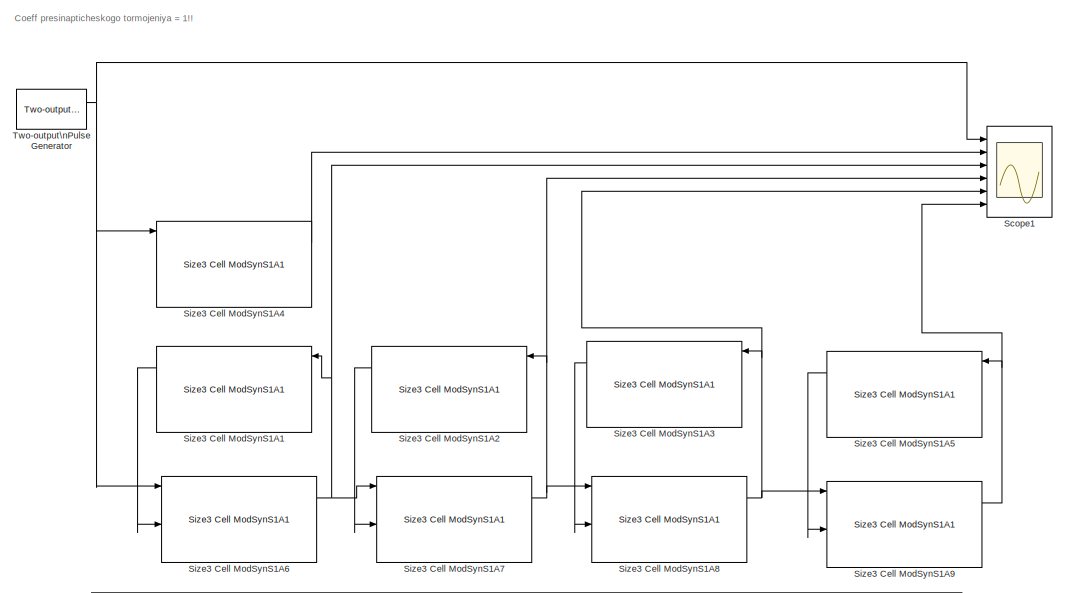
[diagram: root canvas - part 1/2, full width, top band]
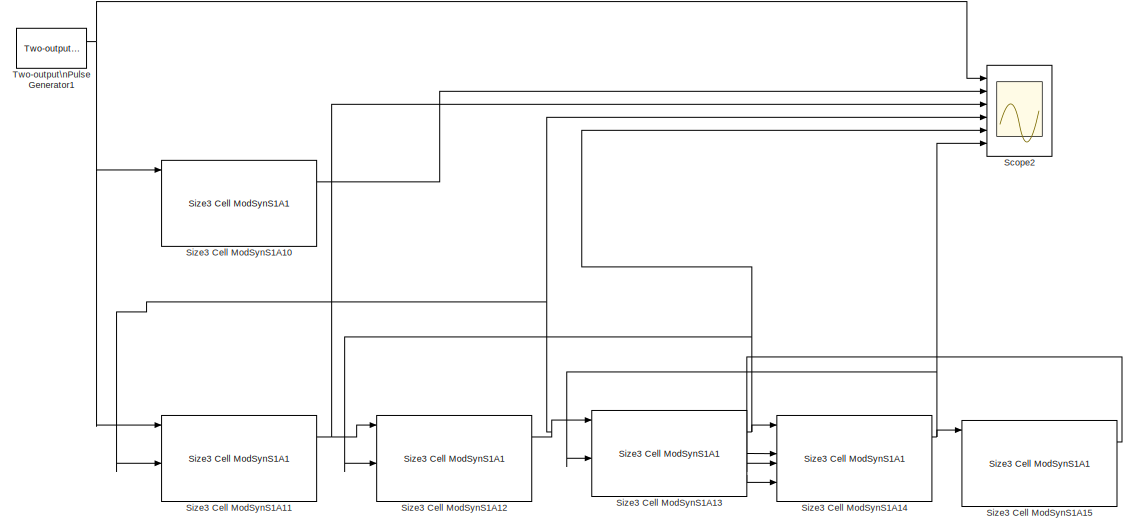
[diagram: root canvas - part 2/2, full width, bottom band]
MODEL ReflexiveInhibition
KIND model
BLOCK [Scope] Scope1
  Floating = off
  NumInputPorts = 6
  Ports = [6]
  SID = 1
  ScopeSpecificationString = Simulink.scopes.TimeScopeBlockCfg('CurrentConfiguration', extmgr.ConfigurationSet(extmgr.Configuration('Core','General UI',true),extmgr.Configuration('Core','Source UI',true),extmgr.Configuration('Sources','WiredSimulink',true,'DataLoggingSaveFormat','StructureWithTime','DataLoggingMaxPoints','5000000','DataLoggingLimitDataPoints',true,'DataLoggingDecimation','1','DataLoggingDecimateData',true),ex...<+5275ch>
BLOCK [Scope] Scope2
  Floating = off
  NumInputPorts = 6
  Ports = [6]
  SID = 2
  ScopeSpecificationString = Simulink.scopes.TimeScopeBlockCfg('CurrentConfiguration', extmgr.ConfigurationSet(extmgr.Configuration('Core','General UI',true),extmgr.Configuration('Core','Source UI',true),extmgr.Configuration('Sources','WiredSimulink',true,'DataLoggingVariableName','ScopeData1','DataLoggingSaveFormat','StructureWithTime','DataLoggingMaxPoints','5000000','DataLoggingLimitDataPoints',true,'DataLoggingDecimation'...<+5335ch>
BLOCK [Reference] Size3 Cell ModSynS1A1  REF=NeuroModelerLibrary/Sized Cells/Size3 Cell ModSynS1A1
  AllowZeroVariantControls = off
  AutoFrameSizeCalculation = off
  Latency = 0
  Ports = [8, 3]
  PropagateVariantConditions = off
  RTWMemSecDataConstants = Inherit from model
  RTWMemSecDataInternal = Inherit from model
  RTWMemSecDataParameters = Inherit from model
  RTWMemSecFuncExecute = Inherit from model
  RTWMemSecFuncInitTerm = Inherit from model
  SID = 25
  ShowPortLabels = FromPortIcon
  SourceBlock = NeuroModelerLibrary/Sized Cells/Size3 Cell ModSynS1A1
  SourceType = SubSystem
  SystemSampleTime = -1
  VariantActivationTime = update diagram
BLOCK [Reference] Size3 Cell ModSynS1A10  REF=NeuroModelerLibrary/Sized Cells/Size3 Cell ModSynS1A1
  AllowZeroVariantControls = off
  AutoFrameSizeCalculation = off
  Latency = 0
  NameLocation = top
  Ports = [8, 3]
  PropagateVariantConditions = off
  RTWMemSecDataConstants = Inherit from model
  RTWMemSecDataInternal = Inherit from model
  RTWMemSecDataParameters = Inherit from model
  RTWMemSecFuncExecute = Inherit from model
  RTWMemSecFuncInitTerm = Inherit from model
  SID = 34
  ShowPortLabels = FromPortIcon
  SourceBlock = NeuroModelerLibrary/Sized Cells/Size3 Cell ModSynS1A1
  SourceType = SubSystem
  SystemSampleTime = -1
  VariantActivationTime = update diagram
BLOCK [Reference] Size3 Cell ModSynS1A11  REF=NeuroModelerLibrary/Sized Cells/Size3 Cell ModSynS1A1
  AllowZeroVariantControls = off
  AutoFrameSizeCalculation = off
  Latency = 0
  NameLocation = top
  Ports = [8, 3]
  PropagateVariantConditions = off
  RTWMemSecDataConstants = Inherit from model
  RTWMemSecDataInternal = Inherit from model
  RTWMemSecDataParameters = Inherit from model
  RTWMemSecFuncExecute = Inherit from model
  RTWMemSecFuncInitTerm = Inherit from model
  SID = 35
  ShowPortLabels = FromPortIcon
  SourceBlock = NeuroModelerLibrary/Sized Cells/Size3 Cell ModSynS1A1
  SourceType = SubSystem
  SystemSampleTime = -1
  VariantActivationTime = update diagram
BLOCK [Reference] Size3 Cell ModSynS1A12  REF=NeuroModelerLibrary/Sized Cells/Size3 Cell ModSynS1A1
  AllowZeroVariantControls = off
  AutoFrameSizeCalculation = off
  Latency = 0
  NameLocation = top
  Ports = [8, 3]
  PropagateVariantConditions = off
  RTWMemSecDataConstants = Inherit from model
  RTWMemSecDataInternal = Inherit from model
  RTWMemSecDataParameters = Inherit from model
  RTWMemSecFuncExecute = Inherit from model
  RTWMemSecFuncInitTerm = Inherit from model
  SID = 36
  ShowPortLabels = FromPortIcon
  SourceBlock = NeuroModelerLibrary/Sized Cells/Size3 Cell ModSynS1A1
  SourceType = SubSystem
  SystemSampleTime = -1
  VariantActivationTime = update diagram
BLOCK [Reference] Size3 Cell ModSynS1A13  REF=NeuroModelerLibrary/Sized Cells/Size3 Cell ModSynS1A1
  AllowZeroVariantControls = off
  AutoFrameSizeCalculation = off
  Latency = 0
  NameLocation = top
  Ports = [8, 3]
  PropagateVariantConditions = off
  RTWMemSecDataConstants = Inherit from model
  RTWMemSecDataInternal = Inherit from model
  RTWMemSecDataParameters = Inherit from model
  RTWMemSecFuncExecute = Inherit from model
  RTWMemSecFuncInitTerm = Inherit from model
  SID = 37
  ShowPortLabels = FromPortIcon
  SourceBlock = NeuroModelerLibrary/Sized Cells/Size3 Cell ModSynS1A1
  SourceType = SubSystem
  SystemSampleTime = -1
  VariantActivationTime = update diagram
BLOCK [Reference] Size3 Cell ModSynS1A14  REF=NeuroModelerLibrary/Sized Cells/Size3 Cell ModSynS1A1
  AllowZeroVariantControls = off
  AutoFrameSizeCalculation = off
  Latency = 0
  NameLocation = top
  Ports = [8, 3]
  PropagateVariantConditions = off
  RTWMemSecDataConstants = Inherit from model
  RTWMemSecDataInternal = Inherit from model
  RTWMemSecDataParameters = Inherit from model
  RTWMemSecFuncExecute = Inherit from model
  RTWMemSecFuncInitTerm = Inherit from model
  SID = 38
  ShowPortLabels = FromPortIcon
  SourceBlock = NeuroModelerLibrary/Sized Cells/Size3 Cell ModSynS1A1
  SourceType = SubSystem
  SystemSampleTime = -1
  VariantActivationTime = update diagram
BLOCK [Reference] Size3 Cell ModSynS1A15  REF=NeuroModelerLibrary/Sized Cells/Size3 Cell ModSynS1A1
  AllowZeroVariantControls = off
  AutoFrameSizeCalculation = off
  Latency = 0
  NameLocation = top
  Ports = [8, 3]
  PropagateVariantConditions = off
  RTWMemSecDataConstants = Inherit from model
  RTWMemSecDataInternal = Inherit from model
  RTWMemSecDataParameters = Inherit from model
  RTWMemSecFuncExecute = Inherit from model
  RTWMemSecFuncInitTerm = Inherit from model
  SID = 39
  ShowPortLabels = FromPortIcon
  SourceBlock = NeuroModelerLibrary/Sized Cells/Size3 Cell ModSynS1A1
  SourceType = SubSystem
  SystemSampleTime = -1
  VariantActivationTime = update diagram
BLOCK [Reference] Size3 Cell ModSynS1A2  REF=NeuroModelerLibrary/Sized Cells/Size3 Cell ModSynS1A1
  AllowZeroVariantControls = off
  AutoFrameSizeCalculation = off
  Latency = 0
  Ports = [8, 3]
  PropagateVariantConditions = off
  RTWMemSecDataConstants = Inherit from model
  RTWMemSecDataInternal = Inherit from model
  RTWMemSecDataParameters = Inherit from model
  RTWMemSecFuncExecute = Inherit from model
  RTWMemSecFuncInitTerm = Inherit from model
  SID = 26
  ShowPortLabels = FromPortIcon
  SourceBlock = NeuroModelerLibrary/Sized Cells/Size3 Cell ModSynS1A1
  SourceType = SubSystem
  SystemSampleTime = -1
  VariantActivationTime = update diagram
BLOCK [Reference] Size3 Cell ModSynS1A3  REF=NeuroModelerLibrary/Sized Cells/Size3 Cell ModSynS1A1
  AllowZeroVariantControls = off
  AutoFrameSizeCalculation = off
  Latency = 0
  Ports = [8, 3]
  PropagateVariantConditions = off
  RTWMemSecDataConstants = Inherit from model
  RTWMemSecDataInternal = Inherit from model
  RTWMemSecDataParameters = Inherit from model
  RTWMemSecFuncExecute = Inherit from model
  RTWMemSecFuncInitTerm = Inherit from model
  SID = 27
  ShowPortLabels = FromPortIcon
  SourceBlock = NeuroModelerLibrary/Sized Cells/Size3 Cell ModSynS1A1
  SourceType = SubSystem
  SystemSampleTime = -1
  VariantActivationTime = update diagram
BLOCK [Reference] Size3 Cell ModSynS1A4  REF=NeuroModelerLibrary/Sized Cells/Size3 Cell ModSynS1A1
  AllowZeroVariantControls = off
  AutoFrameSizeCalculation = off
  Latency = 0
  NameLocation = top
  Ports = [8, 3]
  PropagateVariantConditions = off
  RTWMemSecDataConstants = Inherit from model
  RTWMemSecDataInternal = Inherit from model
  RTWMemSecDataParameters = Inherit from model
  RTWMemSecFuncExecute = Inherit from model
  RTWMemSecFuncInitTerm = Inherit from model
  SID = 24
  ShowPortLabels = FromPortIcon
  SourceBlock = NeuroModelerLibrary/Sized Cells/Size3 Cell ModSynS1A1
  SourceType = SubSystem
  SystemSampleTime = -1
  VariantActivationTime = update diagram
BLOCK [Reference] Size3 Cell ModSynS1A5  REF=NeuroModelerLibrary/Sized Cells/Size3 Cell ModSynS1A1
  AllowZeroVariantControls = off
  AutoFrameSizeCalculation = off
  Latency = 0
  Ports = [8, 3]
  PropagateVariantConditions = off
  RTWMemSecDataConstants = Inherit from model
  RTWMemSecDataInternal = Inherit from model
  RTWMemSecDataParameters = Inherit from model
  RTWMemSecFuncExecute = Inherit from model
  RTWMemSecFuncInitTerm = Inherit from model
  SID = 28
  ShowPortLabels = FromPortIcon
  SourceBlock = NeuroModelerLibrary/Sized Cells/Size3 Cell ModSynS1A1
  SourceType = SubSystem
  SystemSampleTime = -1
  VariantActivationTime = update diagram
BLOCK [Reference] Size3 Cell ModSynS1A6  REF=NeuroModelerLibrary/Sized Cells/Size3 Cell ModSynS1A1
  AllowZeroVariantControls = off
  AutoFrameSizeCalculation = off
  Latency = 0
  NameLocation = top
  Ports = [8, 3]
  PropagateVariantConditions = off
  RTWMemSecDataConstants = Inherit from model
  RTWMemSecDataInternal = Inherit from model
  RTWMemSecDataParameters = Inherit from model
  RTWMemSecFuncExecute = Inherit from model
  RTWMemSecFuncInitTerm = Inherit from model
  SID = 29
  ShowPortLabels = FromPortIcon
  SourceBlock = NeuroModelerLibrary/Sized Cells/Size3 Cell ModSynS1A1
  SourceType = SubSystem
  SystemSampleTime = -1
  VariantActivationTime = update diagram
BLOCK [Reference] Size3 Cell ModSynS1A7  REF=NeuroModelerLibrary/Sized Cells/Size3 Cell ModSynS1A1
  AllowZeroVariantControls = off
  AutoFrameSizeCalculation = off
  Latency = 0
  NameLocation = top
  Ports = [8, 3]
  PropagateVariantConditions = off
  RTWMemSecDataConstants = Inherit from model
  RTWMemSecDataInternal = Inherit from model
  RTWMemSecDataParameters = Inherit from model
  RTWMemSecFuncExecute = Inherit from model
  RTWMemSecFuncInitTerm = Inherit from model
  SID = 30
  ShowPortLabels = FromPortIcon
  SourceBlock = NeuroModelerLibrary/Sized Cells/Size3 Cell ModSynS1A1
  SourceType = SubSystem
  SystemSampleTime = -1
  VariantActivationTime = update diagram
BLOCK [Reference] Size3 Cell ModSynS1A8  REF=NeuroModelerLibrary/Sized Cells/Size3 Cell ModSynS1A1
  AllowZeroVariantControls = off
  AutoFrameSizeCalculation = off
  Latency = 0
  NameLocation = top
  Ports = [8, 3]
  PropagateVariantConditions = off
  RTWMemSecDataConstants = Inherit from model
  RTWMemSecDataInternal = Inherit from model
  RTWMemSecDataParameters = Inherit from model
  RTWMemSecFuncExecute = Inherit from model
  RTWMemSecFuncInitTerm = Inherit from model
  SID = 31
  ShowPortLabels = FromPortIcon
  SourceBlock = NeuroModelerLibrary/Sized Cells/Size3 Cell ModSynS1A1
  SourceType = SubSystem
  SystemSampleTime = -1
  VariantActivationTime = update diagram
BLOCK [Reference] Size3 Cell ModSynS1A9  REF=NeuroModelerLibrary/Sized Cells/Size3 Cell ModSynS1A1
  AllowZeroVariantControls = off
  AutoFrameSizeCalculation = off
  Latency = 0
  NameLocation = top
  Ports = [8, 3]
  PropagateVariantConditions = off
  RTWMemSecDataConstants = Inherit from model
  RTWMemSecDataInternal = Inherit from model
  RTWMemSecDataParameters = Inherit from model
  RTWMemSecFuncExecute = Inherit from model
  RTWMemSecFuncInitTerm = Inherit from model
  SID = 32
  ShowPortLabels = FromPortIcon
  SourceBlock = NeuroModelerLibrary/Sized Cells/Size3 Cell ModSynS1A1
  SourceType = SubSystem
  SystemSampleTime = -1
  VariantActivationTime = update diagram
BLOCK [Reference] Two-output\nPulse Generator  REF=NeuroModelerLibrary/Support/Two-output\nPulse Generator
  A = 1
  OOff1 = 1
  OOff2 = 0.3
  OOn1 = 0.15
  OOn2 = 0.25
  P1 = 40
  P2 = 200
  PW = 1
  Ports = [0, 2]
  RTWMemSecDataConstants = Inherit from model
  RTWMemSecDataInternal = Inherit from model
  RTWMemSecDataParameters = Inherit from model
  RTWMemSecFuncExecute = Inherit from model
  RTWMemSecFuncInitTerm = Inherit from model
  SID = 18
  ST = 0.001
  SourceBlock = NeuroModelerLibrary/Support/Two-output\nPulse Generator
BLOCK [Reference] Two-output\nPulse Generator1  REF=NeuroModelerLibrary/Support/Two-output\nPulse Generator
  A = 1
  OOff1 = 1
  OOff2 = 0.3
  OOn1 = 0.15
  OOn2 = 0.25
  P1 = 40
  P2 = 200
  PW = 1
  Ports = [0, 2]
  RTWMemSecDataConstants = Inherit from model
  RTWMemSecDataInternal = Inherit from model
  RTWMemSecDataParameters = Inherit from model
  RTWMemSecFuncExecute = Inherit from model
  RTWMemSecFuncInitTerm = Inherit from model
  SID = 19
  ST = 0.001
  SourceBlock = NeuroModelerLibrary/Support/Two-output\nPulse Generator
ANNOTATION (root): Coeff presinapticheskogo tormojeniya = 1!!
LINE Size3 Cell ModSynS1A10:1 -> Scope2:2
NET Size3 Cell ModSynS1A11:1 -> Scope2:3, Size3 Cell ModSynS1A12:1
NET Size3 Cell ModSynS1A12:1 -> Scope2:4, Size3 Cell ModSynS1A11:5, Size3 Cell ModSynS1A13:1
NET Size3 Cell ModSynS1A13:1 -> Scope2:5, Size3 Cell ModSynS1A12:5, Size3 Cell ModSynS1A14:1
LINE Size3 Cell ModSynS1A13:2 -> Size3 Cell ModSynS1A14:4
LINE Size3 Cell ModSynS1A13:3 -> Size3 Cell ModSynS1A14:7
NET Size3 Cell ModSynS1A14:1 -> Scope2:6, Size3 Cell ModSynS1A13:5, Size3 Cell ModSynS1A15:1
LINE Size3 Cell ModSynS1A15:1 -> Size3 Cell ModSynS1A14:5
LINE Size3 Cell ModSynS1A1:1 -> Size3 Cell ModSynS1A6:5
LINE Size3 Cell ModSynS1A2:1 -> Size3 Cell ModSynS1A7:5
LINE Size3 Cell ModSynS1A3:1 -> Size3 Cell ModSynS1A8:5
LINE Size3 Cell ModSynS1A4:1 -> Scope1:2
LINE Size3 Cell ModSynS1A5:1 -> Size3 Cell ModSynS1A9:5
NET Size3 Cell ModSynS1A6:1 -> Scope1:3, Size3 Cell ModSynS1A1:1, Size3 Cell ModSynS1A7:1
NET Size3 Cell ModSynS1A7:1 -> Scope1:4, Size3 Cell ModSynS1A2:1, Size3 Cell ModSynS1A8:1
NET Size3 Cell ModSynS1A8:1 -> Scope1:5, Size3 Cell ModSynS1A3:1, Size3 Cell ModSynS1A9:1
NET Size3 Cell ModSynS1A9:1 -> Scope1:6, Size3 Cell ModSynS1A5:1
NET Two-output\nPulse Generator1:1 -> Scope2:1, Size3 Cell ModSynS1A10:1, Size3 Cell ModSynS1A11:1
NET Two-output\nPulse Generator:1 -> Scope1:1, Size3 Cell ModSynS1A4:1, Size3 Cell ModSynS1A6:1
note: NET lines group one-source signal fan-out (src -> all destinations, sorted); 1:1 wires keep LINE
